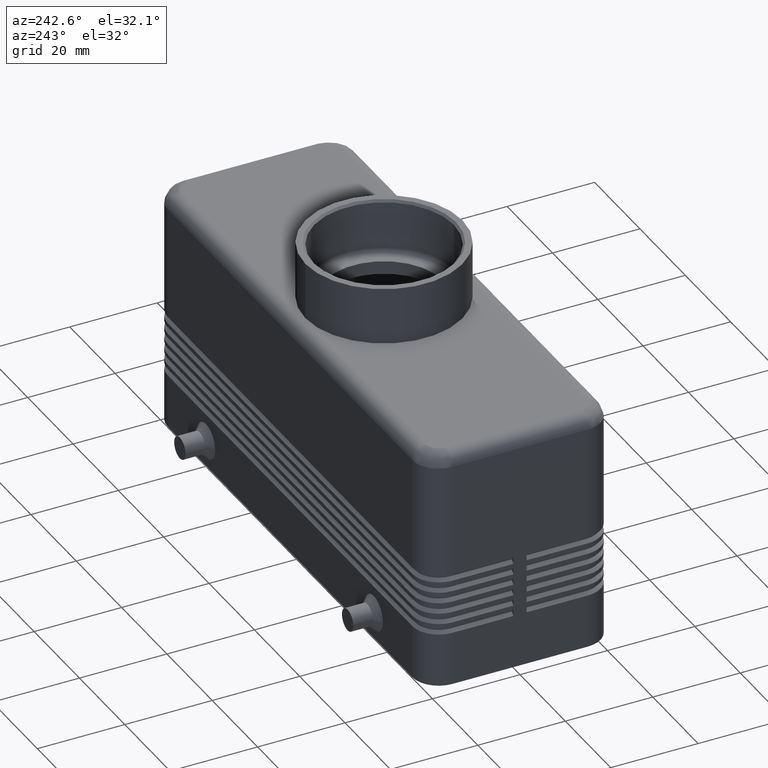
[diagram: clean part render]
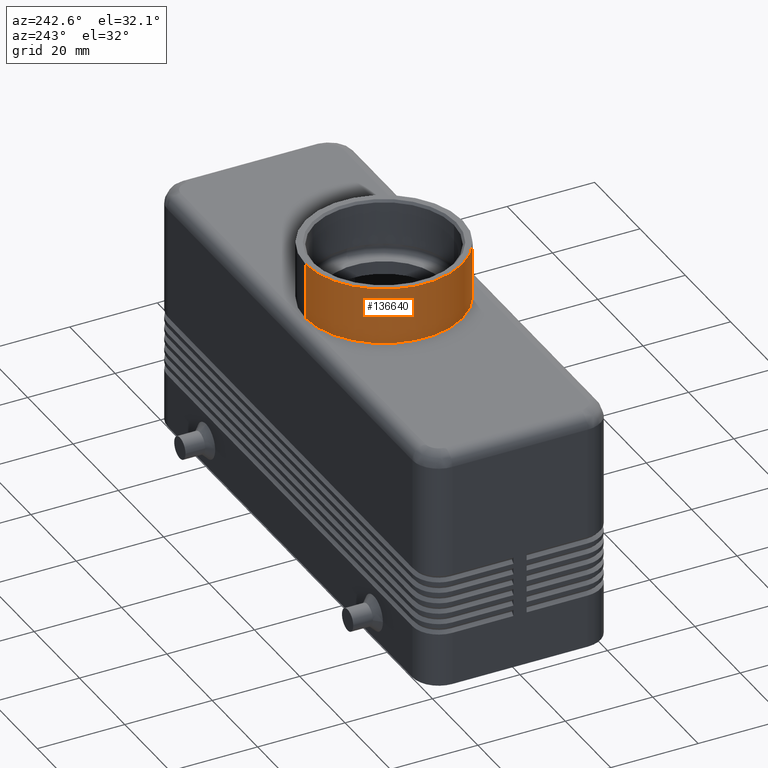
[diagram: same view with one face highlighted and labeled with its STEP entity id]
A machine part, auxiliary view. The second image highlights one B-rep face of the part: STEP entity #136640.
In plain terms, the highlighted cylindrical surface (partial cylindrical patch) has radius 18 mm, axis along (0, 0, -1).
Its self-contained STEP definition (entity closure, byte-faithful):
#48380=CARTESIAN_POINT('',(2.20436423846524E-15,-18.,60.));
#48390=DIRECTION('',(0.,2.237195E-16,-1.));
#48400=VECTOR('',#48390,1.);
#48410=LINE('',#48380,#48400);
#48420=CARTESIAN_POINT('',(2.20436423846524E-15,-18.,68.));
#48430=VERTEX_POINT('',#48420);
#48440=CARTESIAN_POINT('',(2.20436423846524E-15,-18.,55.));
#48450=VERTEX_POINT('',#48440);
#48460=EDGE_CURVE('',#48430,#48450,#48410,.T.);
#48480=CARTESIAN_POINT('',(0.,-6.264147E-15,68.));
#48490=DIRECTION('',(0.,0.,-1.));
#48500=DIRECTION('',(0.,1.,0.));
#48510=AXIS2_PLACEMENT_3D('',#48480,#48490,#48500);
#48520=CIRCLE('',#48510,18.);
#48530=CARTESIAN_POINT('',(0.,18.,68.));
#48540=VERTEX_POINT('',#48530);
#48570=CARTESIAN_POINT('',(0.,18.,60.));
#48580=DIRECTION('',(0.,2.237195E-16,-1.));
#48590=VECTOR('',#48580,1.);
#48600=LINE('',#48570,#48590);
#48610=CARTESIAN_POINT('',(0.,18.,55.));
#48620=VERTEX_POINT('',#48610);
#48630=EDGE_CURVE('',#48540,#48620,#48600,.T.);
#48650=CARTESIAN_POINT('',(0.,-3.355793E-15,55.));
#48660=DIRECTION('',(0.,0.,-1.));
#48670=DIRECTION('',(0.,1.,0.));
#48680=AXIS2_PLACEMENT_3D('',#48650,#48660,#48670);
#48690=CIRCLE('',#48680,18.);
#53070=EDGE_CURVE('',#48450,#48620,#48690,.T.);
#56810=EDGE_CURVE('',#48430,#48540,#48520,.T.);
#136530=CARTESIAN_POINT('',(0.,-4.474391E-15,60.));
#136540=DIRECTION('',(0.,2.237195E-16,-1.));
#136550=DIRECTION('',(0.,1.,2.237195E-16));
#136560=AXIS2_PLACEMENT_3D('',#136530,#136540,#136550);
#136570=CYLINDRICAL_SURFACE('',#136560,18.);
#136580=ORIENTED_EDGE('',*,*,#48460,.F.);
#136590=ORIENTED_EDGE('',*,*,#53070,.F.);
#136600=ORIENTED_EDGE('',*,*,#48630,.T.);
#136610=ORIENTED_EDGE('',*,*,#56810,.T.);
#136620=EDGE_LOOP('',(#136610,#136600,#136590,#136580));
#136630=FACE_OUTER_BOUND('',#136620,.T.);
#136640=ADVANCED_FACE('',(#136630),#136570,.T.);